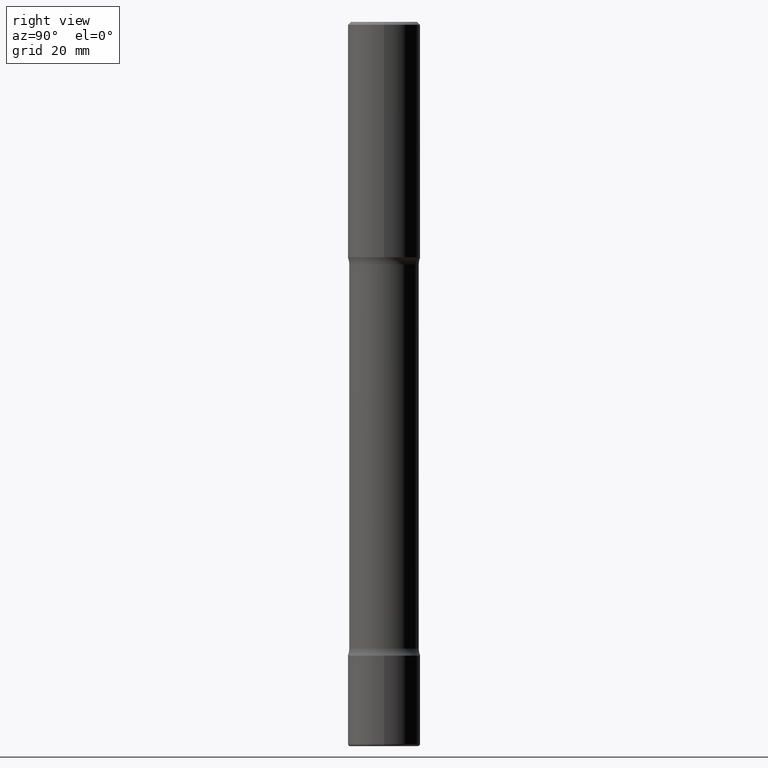
[diagram: clean part render]
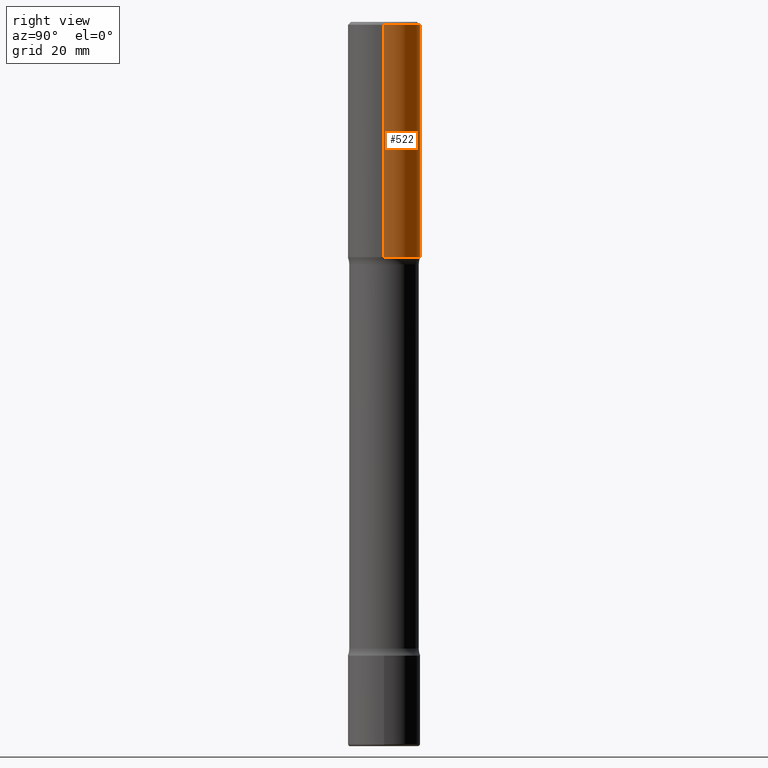
[diagram: same view with one face highlighted and labeled with its STEP entity id]
A machine part, right view. The second image highlights one B-rep face of the part: STEP entity #522.
In plain terms, the highlighted cylindrical surface (edge-blend (fillet) strip) has radius 6.35 mm, axis along (-0, 0, 1).
Its self-contained STEP definition (entity closure, byte-faithful):
#18 = VERTEX_POINT ( 'NONE', #258 ) ;
#24 = CIRCLE ( 'NONE', #490, 0.2500000000000003331 ) ;
#30 = DIRECTION ( 'NONE',  ( 1.000000000000000000, -6.982962677686267499E-15, 4.876176775795936353E-29 ) ) ;
#66 = EDGE_CURVE ( 'NONE', #414, #347, #395, .T. ) ;
#91 = EDGE_CURVE ( 'NONE', #18, #103, #141, .T. ) ;
#100 = DIRECTION ( 'NONE',  ( -2.445468806185136597E-29, 3.491481338843145583E-15, 1.000000000000000000 ) ) ;
#101 = CARTESIAN_POINT ( 'NONE',  ( -0.2500000000000002220, 1.776356839400252042E-15, -1.229733772563727566E-29 ) ) ;
#103 = VERTEX_POINT ( 'NONE', #317 ) ;
#129 = CARTESIAN_POINT ( 'NONE',  ( 0.2500000000000002220, -1.745740669421568453E-15, 1.219044193948985209E-29 ) ) ;
#141 = LINE ( 'NONE', #101, #153 ) ;
#153 = VECTOR ( 'NONE', #446, 39.37007874015748143 ) ;
#166 = EDGE_CURVE ( 'NONE', #347, #103, #476, .T. ) ;
#175 = EDGE_LOOP ( 'NONE', ( #184, #289, #318, #274 ) ) ;
#177 = VECTOR ( 'NONE', #484, 39.37007874015748143 ) ;
#184 = ORIENTED_EDGE ( 'NONE', *, *, #557, .T. ) ;
#191 = CARTESIAN_POINT ( 'NONE',  ( 3.973886810050846970E-29, -5.673657175620112213E-15, -1.625000000000000000 ) ) ;
#216 = CARTESIAN_POINT ( 'NONE',  ( 0.2500000000000001110, -1.784954126219746583E-15, -0.02000000000000005246 ) ) ;
#217 = AXIS2_PLACEMENT_3D ( 'NONE', #460, #100, #416 ) ;
#241 = FACE_OUTER_BOUND ( 'NONE', #175, .T. ) ;
#258 = CARTESIAN_POINT ( 'NONE',  ( -0.2500000000000003331, -1.095386561798233741E-15, -1.625000000000000000 ) ) ;
#274 = ORIENTED_EDGE ( 'NONE', *, *, #66, .F. ) ;
#289 = ORIENTED_EDGE ( 'NONE', *, *, #91, .T. ) ;
#317 = CARTESIAN_POINT ( 'NONE',  ( -0.2500000000000001110, 1.675911042644704563E-15, -0.02000000000000005246 ) ) ;
#318 = ORIENTED_EDGE ( 'NONE', *, *, #166, .F. ) ;
#327 = CYLINDRICAL_SURFACE ( 'NONE', #468, 0.2500000000000002220 ) ;
#347 = VERTEX_POINT ( 'NONE', #216 ) ;
#369 = DIRECTION ( 'NONE',  ( 1.000000000000000000, -6.982962677686269077E-15, 0.000000000000000000 ) ) ;
#395 = LINE ( 'NONE', #129, #177 ) ;
#414 = VERTEX_POINT ( 'NONE', #462 ) ;
#416 = DIRECTION ( 'NONE',  ( 1.000000000000000000, -6.982962677686267499E-15, 0.000000000000000000 ) ) ;
#446 = DIRECTION ( 'NONE',  ( -2.445468806185136877E-29, 3.491481338843145188E-15, 1.000000000000000000 ) ) ;
#457 = DIRECTION ( 'NONE',  ( -2.445468806185136597E-29, 3.491481338843145583E-15, 1.000000000000000000 ) ) ;
#460 = CARTESIAN_POINT ( 'NONE',  ( 4.890937612370285420E-31, -6.982962677686308865E-17, -0.02000000000000005246 ) ) ;
#462 = CARTESIAN_POINT ( 'NONE',  ( 0.2500000000000003331, -7.419397845041682046E-15, -1.625000000000000000 ) ) ;
#463 = DIRECTION ( 'NONE',  ( -2.445468806185136597E-29, 3.491481338843145583E-15, 1.000000000000000000 ) ) ;
#468 = AXIS2_PLACEMENT_3D ( 'NONE', #553, #457, #30 ) ;
#476 = CIRCLE ( 'NONE', #217, 0.2500000000000001110 ) ;
#484 = DIRECTION ( 'NONE',  ( -2.445468806185136877E-29, 3.491481338843145188E-15, 1.000000000000000000 ) ) ;
#490 = AXIS2_PLACEMENT_3D ( 'NONE', #191, #463, #369 ) ;
#522 = ADVANCED_FACE ( 'NONE', ( #241 ), #327, .T. ) ;
#553 = CARTESIAN_POINT ( 'NONE',  ( 0.000000000000000000, 0.000000000000000000, 0.000000000000000000 ) ) ;
#557 = EDGE_CURVE ( 'NONE', #414, #18, #24, .T. ) ;